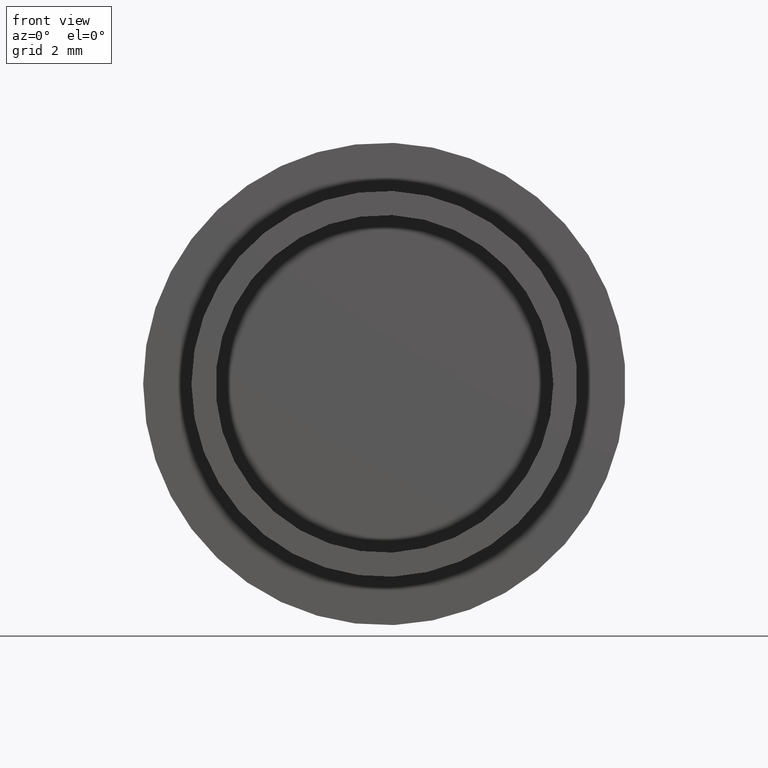
[diagram: clean part render]
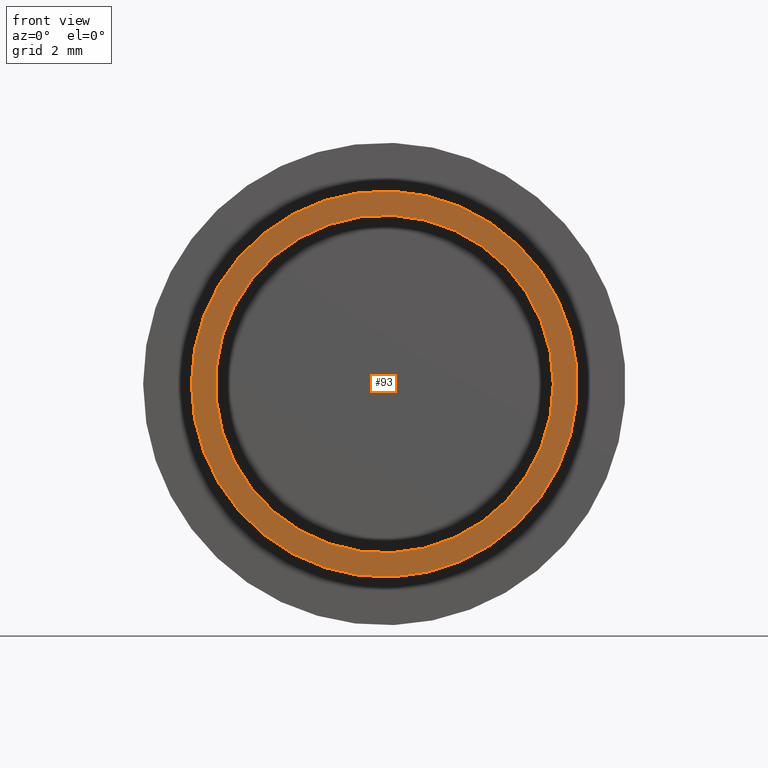
[diagram: same view with one face highlighted and labeled with its STEP entity id]
A machine part, front view. The second image highlights one B-rep face of the part: STEP entity #93.
In plain terms, the highlighted planar face has unit normal (0, -1, 0).
Its self-contained STEP definition (entity closure, byte-faithful):
#19=PLANE('',#110);
#25=FACE_BOUND('',#47,.T.);
#33=FACE_OUTER_BOUND('',#46,.T.);
#46=EDGE_LOOP('',(#81));
#47=EDGE_LOOP('',(#82));
#49=CIRCLE('',#98,3.5);
#54=CIRCLE('',#108,4.);
#56=VERTEX_POINT('',#147);
#61=VERTEX_POINT('',#162);
#63=EDGE_CURVE('',#56,#56,#49,.T.);
#68=EDGE_CURVE('',#61,#61,#54,.T.);
#81=ORIENTED_EDGE('',*,*,#68,.F.);
#82=ORIENTED_EDGE('',*,*,#63,.T.);
#93=ADVANCED_FACE('',(#33,#25),#19,.T.);
#98=AXIS2_PLACEMENT_3D('',#148,#117,#118);
#108=AXIS2_PLACEMENT_3D('',#163,#137,#138);
#110=AXIS2_PLACEMENT_3D('',#165,#141,#142);
#117=DIRECTION('center_axis',(0.,1.,0.));
#118=DIRECTION('ref_axis',(-1.,0.,0.));
#137=DIRECTION('center_axis',(0.,1.,0.));
#138=DIRECTION('ref_axis',(1.,0.,0.));
#141=DIRECTION('center_axis',(0.,-1.,0.));
#142=DIRECTION('ref_axis',(0.,0.,-1.));
#147=CARTESIAN_POINT('',(3.5,0.,4.28626379701574E-16));
#148=CARTESIAN_POINT('Origin',(0.,0.,0.));
#162=CARTESIAN_POINT('',(-4.,0.,0.));
#163=CARTESIAN_POINT('Origin',(0.,0.,0.));
#165=CARTESIAN_POINT('Origin',(-4.,0.,0.));